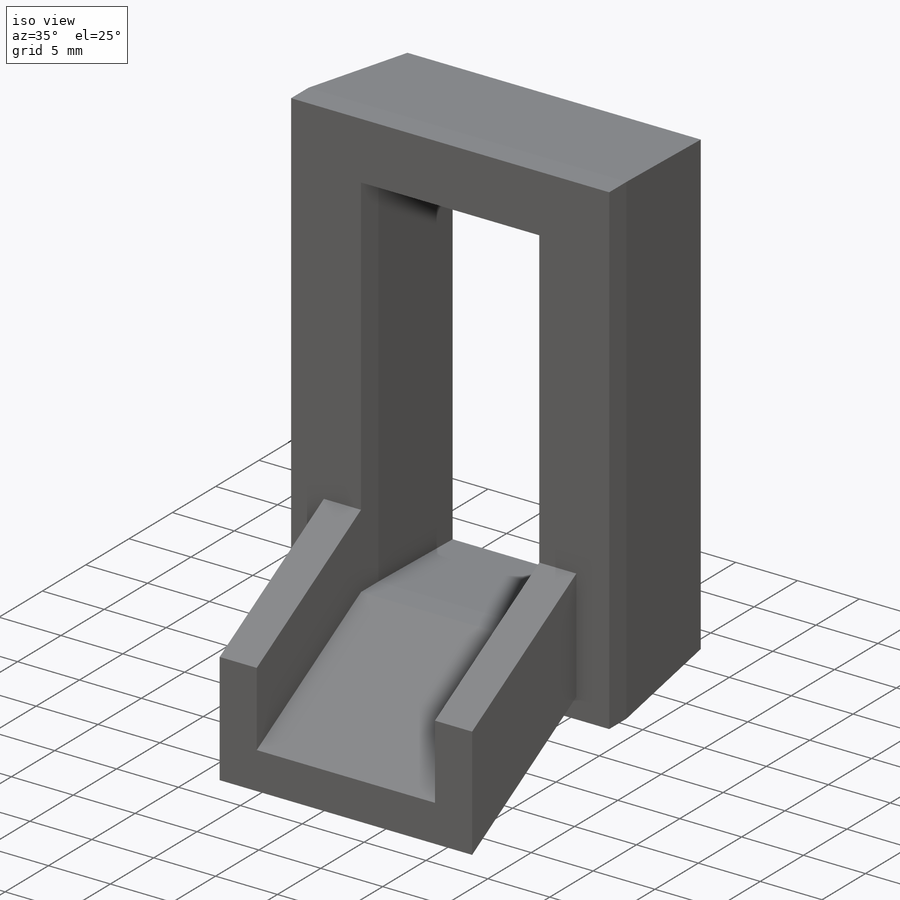
[diagram: iso view]
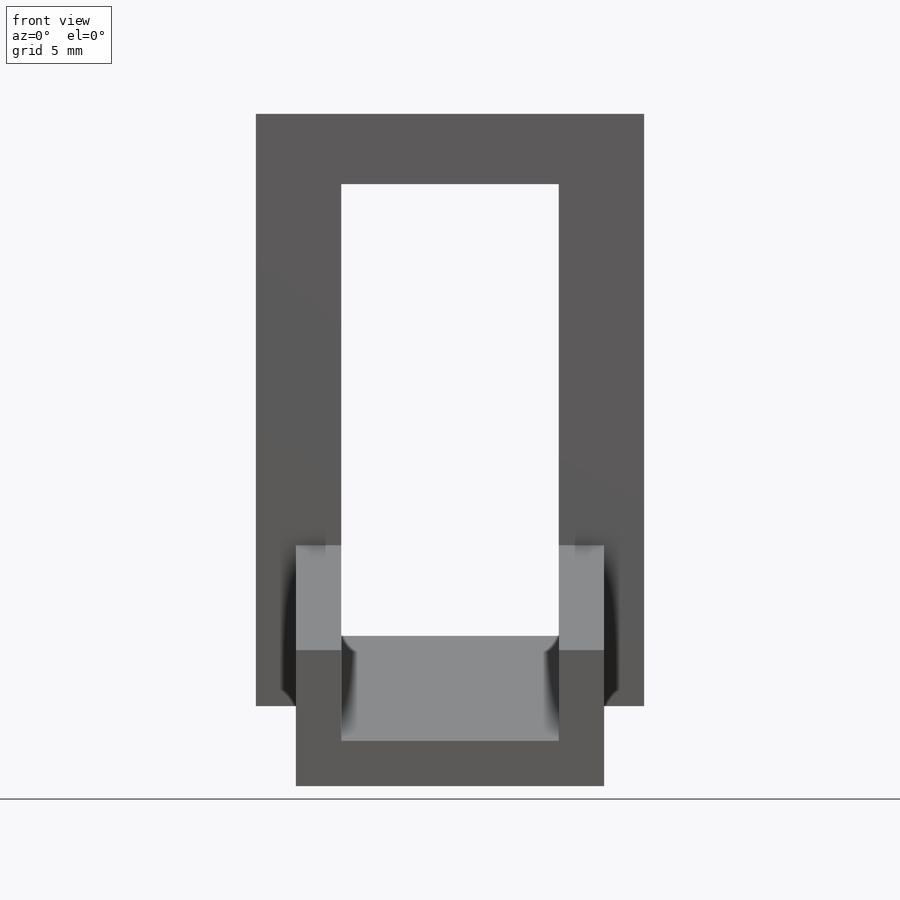
[diagram: front view]
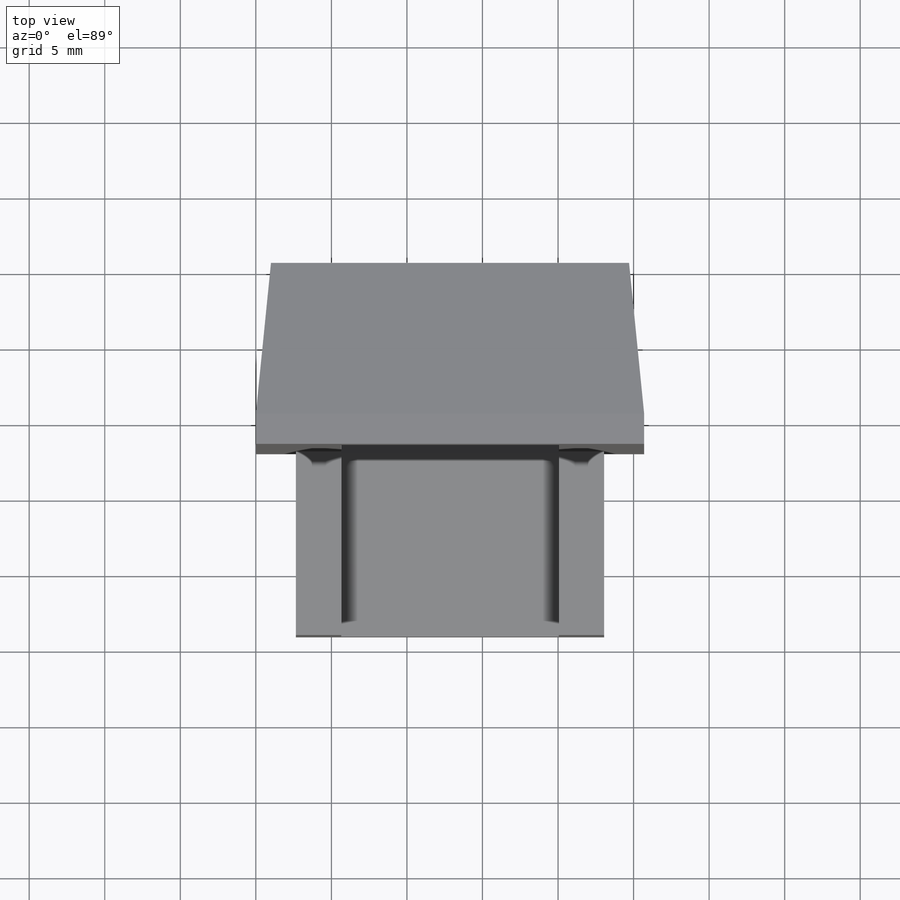
[diagram: top view]
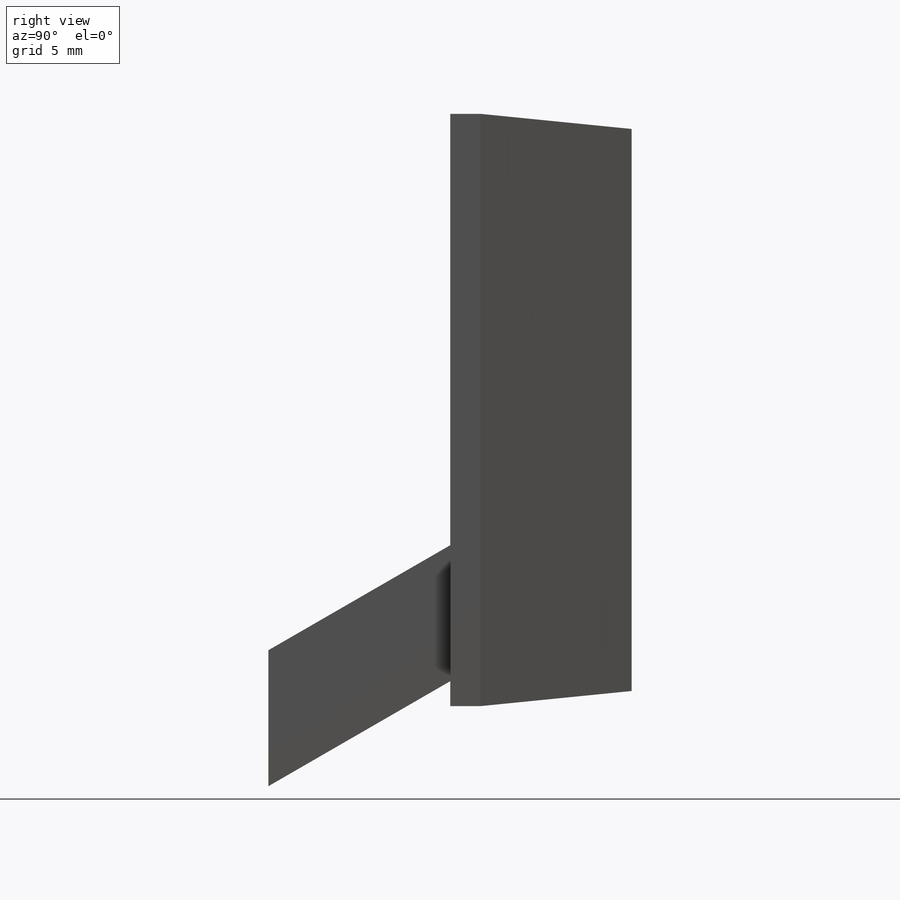
[diagram: right view]
SOLIDWORKS PART (.sldprt)
format: sldprt  version: not decoded by parser v0  size: 183,296 bytes
history: native  units: mm
features: sketch x3, material x1, extrude x1, chamfer x1, plane x1, sweep x1 (+11 scaffold rows collapsed)
feature tree (19):
  scaffold x11  (default folders/planes/origin — collapsed)
  material  "Material <not specified>"
  sketch  "Sketch3"  dims[D1=25.7mm D2=39.2mm D3=14.4mm D4=29.9mm]
  extrude  "Boss-Extrude2"  Depth=12mm
  chamfer  "Chamfer1"  Distance=1mm
  sketch  "Sketch4"  dims[D1=3.0mm D2=3.0mm D3=3.0mm D4=6.0mm]
  plane  "Plane1"
  sketch  "Sketch6"  dims[c1.D1=~14.95555mm c2.D1=60.0deg]
  sweep  "Sweep1"
decode coverage: 5 of 6 modeling features carry decoded parameters
note: ~ marks probable driven/reference dimensions
note: suppression state not decoded; provenance and decode notes live in map.json
